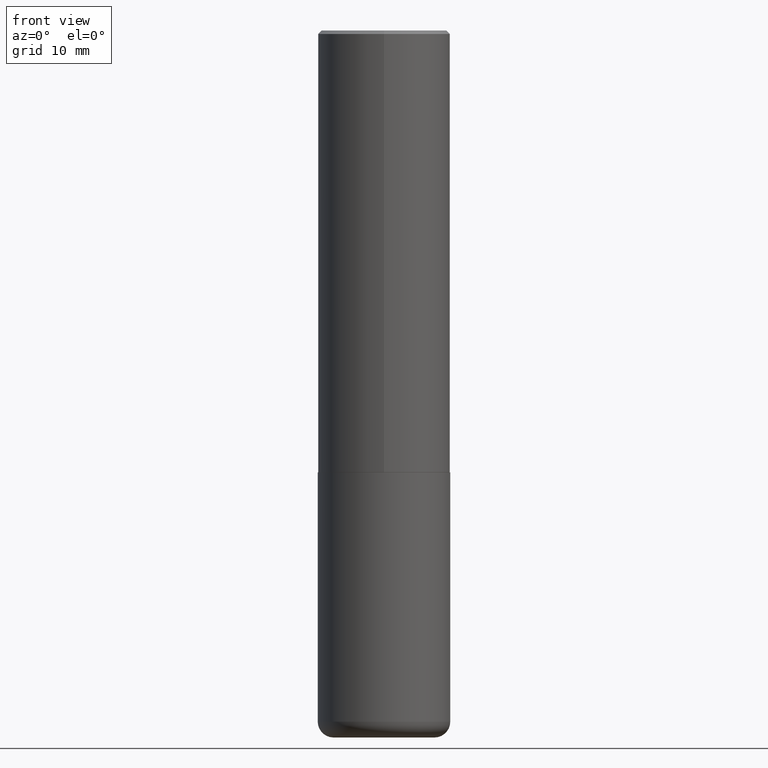
[diagram: clean part render]
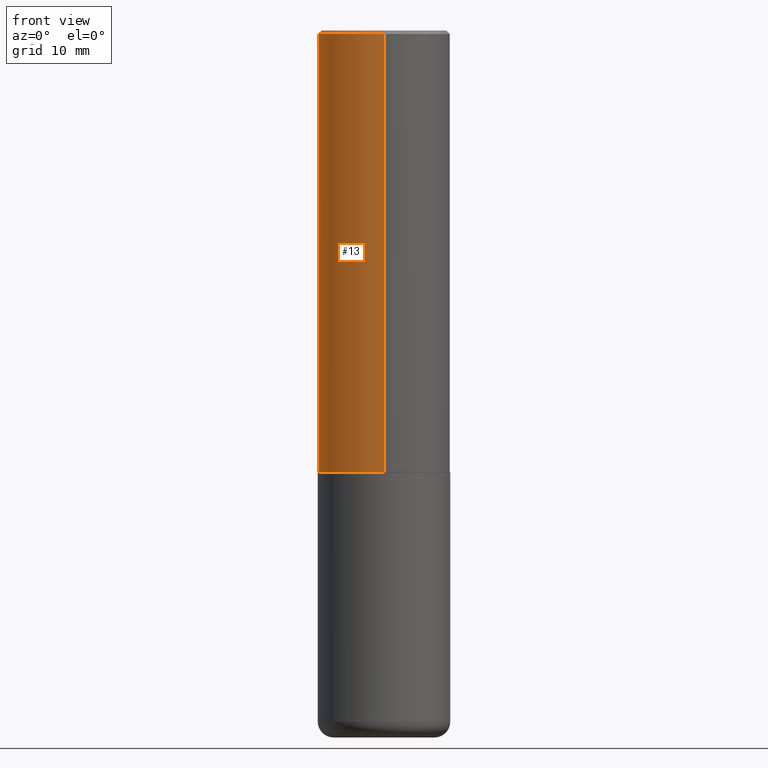
[diagram: same view with one face highlighted and labeled with its STEP entity id]
A machine part, front view. The second image highlights one B-rep face of the part: STEP entity #13.
In plain terms, the highlighted cylindrical surface (partial cylindrical patch) has radius 9.525 mm, axis along (-0, 0, 1).
Its self-contained STEP definition (entity closure, byte-faithful):
#13 = ADVANCED_FACE ( 'NONE', ( #327 ), #171, .T. ) ;
#18 = ORIENTED_EDGE ( 'NONE', *, *, #370, .F. ) ;
#43 = EDGE_CURVE ( 'NONE', #117, #185, #383, .T. ) ;
#62 = VECTOR ( 'NONE', #184, 39.37007874015748143 ) ;
#85 = ORIENTED_EDGE ( 'NONE', *, *, #272, .T. ) ;
#111 = EDGE_LOOP ( 'NONE', ( #345, #120, #85, #18 ) ) ;
#117 = VERTEX_POINT ( 'NONE', #416 ) ;
#120 = ORIENTED_EDGE ( 'NONE', *, *, #394, .T. ) ;
#134 = CARTESIAN_POINT ( 'NONE',  ( 0.000000000000000000, 0.000000000000000000, 0.000000000000000000 ) ) ;
#142 = AXIS2_PLACEMENT_3D ( 'NONE', #167, #352, #322 ) ;
#147 = CARTESIAN_POINT ( 'NONE',  ( -2.618611004132351200E-15, -0.3750000000000001665, 1.309881695517770421E-15 ) ) ;
#165 = DIRECTION ( 'NONE',  ( -6.982962677686266711E-15, -1.000000000000000000, 2.913971193241878794E-15 ) ) ;
#167 = CARTESIAN_POINT ( 'NONE',  ( 4.888791725774251015E-31, -6.986035709428135453E-17, -0.02000000000000008715 ) ) ;
#168 = DIRECTION ( 'NONE',  ( -2.444395862887114192E-29, 3.493017854714053009E-15, 1.000000000000000000 ) ) ;
#171 = CYLINDRICAL_SURFACE ( 'NONE', #300, 0.3750000000000001665 ) ;
#183 = VERTEX_POINT ( 'NONE', #235 ) ;
#184 = DIRECTION ( 'NONE',  ( -2.444395862887114192E-29, 3.493017854714053009E-15, 1.000000000000000000 ) ) ;
#185 = VERTEX_POINT ( 'NONE', #209 ) ;
#201 = DIRECTION ( 'NONE',  ( -2.444395862887114472E-29, 3.493017854714053009E-15, 1.000000000000000000 ) ) ;
#209 = CARTESIAN_POINT ( 'NONE',  ( 2.618611004132350411E-15, 0.3749999999999999445, -0.02000000000000139513 ) ) ;
#224 = CARTESIAN_POINT ( 'NONE',  ( 6.108545261354898806E-29, -8.729051618930418030E-15, -2.498999999999999666 ) ) ;
#235 = CARTESIAN_POINT ( 'NONE',  ( -2.572686749164323547E-15, -0.3750000000000001110, -0.01999999999999877570 ) ) ;
#259 = DIRECTION ( 'NONE',  ( -6.982962677686266711E-15, -1.000000000000000000, 3.493017854714053009E-15 ) ) ;
#270 = DIRECTION ( 'NONE',  ( -2.444395862887114472E-29, 3.493017854714053009E-15, 1.000000000000000000 ) ) ;
#272 = EDGE_CURVE ( 'NONE', #369, #183, #344, .T. ) ;
#282 = CIRCLE ( 'NONE', #348, 0.3750000000000002776 ) ;
#300 = AXIS2_PLACEMENT_3D ( 'NONE', #134, #201, #259 ) ;
#322 = DIRECTION ( 'NONE',  ( -6.982962677686265922E-15, -1.000000000000000000, 3.494488891895536035E-15 ) ) ;
#327 = FACE_OUTER_BOUND ( 'NONE', #111, .T. ) ;
#344 = LINE ( 'NONE', #147, #62 ) ;
#345 = ORIENTED_EDGE ( 'NONE', *, *, #43, .F. ) ;
#348 = AXIS2_PLACEMENT_3D ( 'NONE', #224, #270, #165 ) ;
#352 = DIRECTION ( 'NONE',  ( -2.444395862887114472E-29, 3.493017854714053009E-15, 1.000000000000000000 ) ) ;
#356 = CIRCLE ( 'NONE', #142, 0.3750000000000000555 ) ;
#358 = CARTESIAN_POINT ( 'NONE',  ( -2.618611004132290852E-15, -0.3750000000000090483, -2.498999999999998778 ) ) ;
#359 = CARTESIAN_POINT ( 'NONE',  ( 2.664535259100376486E-15, 0.3750000000000001665, -1.309881695517770421E-15 ) ) ;
#369 = VERTEX_POINT ( 'NONE', #358 ) ;
#370 = EDGE_CURVE ( 'NONE', #185, #183, #356, .T. ) ;
#371 = VECTOR ( 'NONE', #168, 39.37007874015748143 ) ;
#383 = LINE ( 'NONE', #359, #371 ) ;
#394 = EDGE_CURVE ( 'NONE', #117, #369, #282, .T. ) ;
#416 = CARTESIAN_POINT ( 'NONE',  ( 2.664535259100408040E-15, 0.3749999999999915623, -2.499000000000000998 ) ) ;